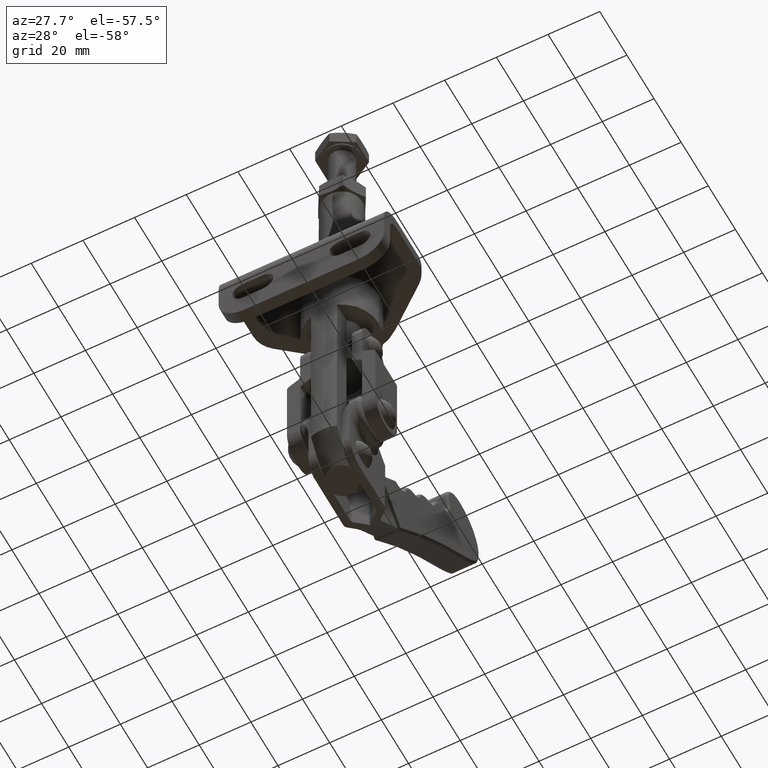
[diagram: clean part render]
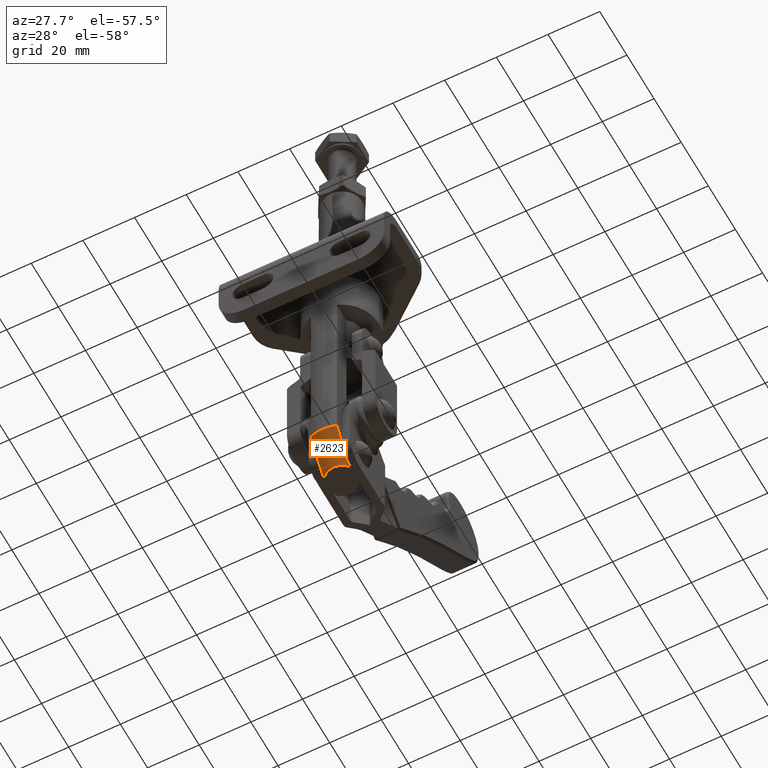
[diagram: same view with one face highlighted and labeled with its STEP entity id]
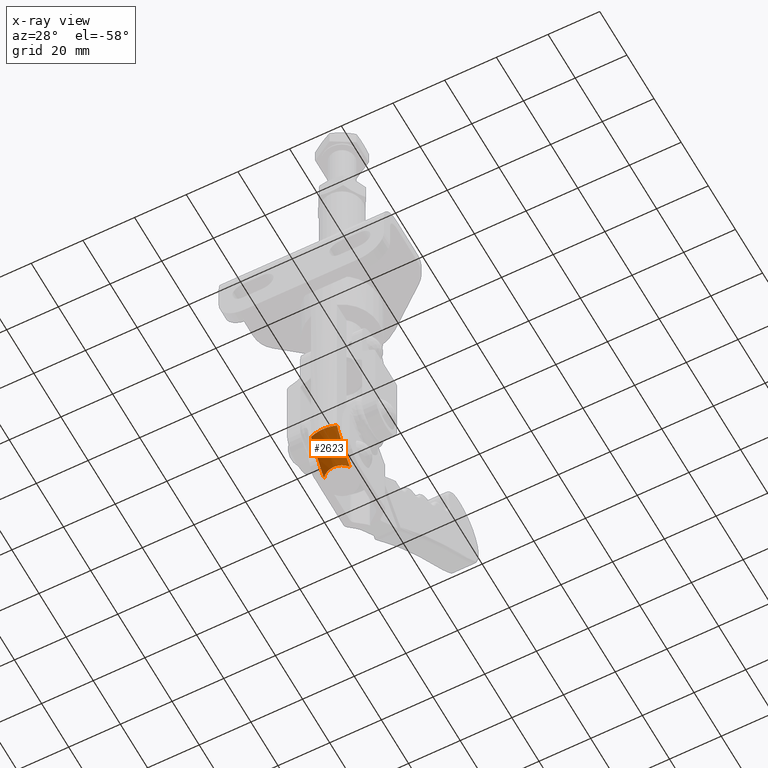
[diagram: x-ray of the same camera — body ghosted, the highlighted face saturated]
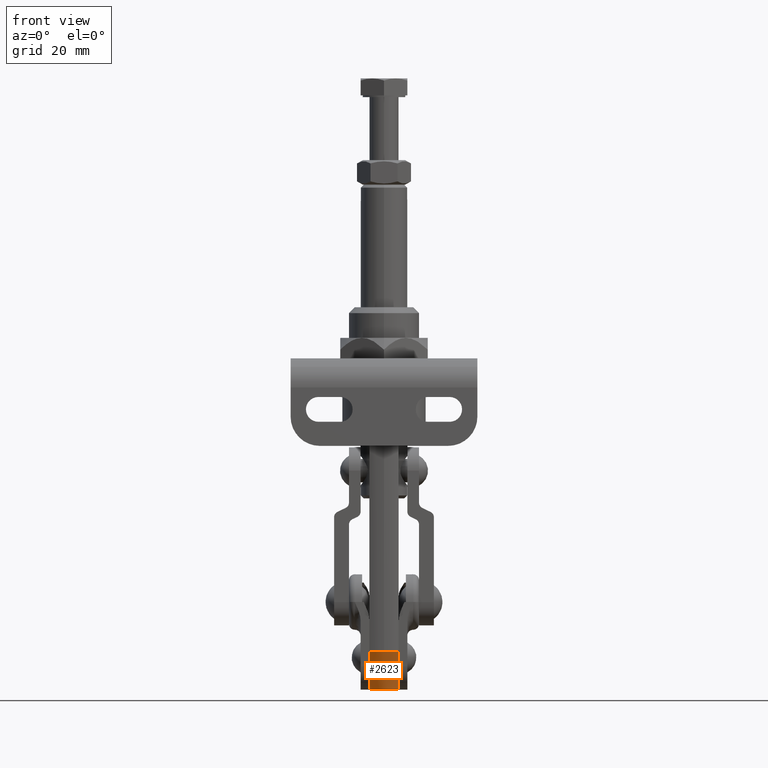
[diagram: same view with one face highlighted and labeled with its STEP entity id]
A machine part, auxiliary view. The second image highlights one B-rep face of the part: STEP entity #2623.
The next image is the same camera in x-ray: the body ghosted, the highlighted face saturated — about 0% of this face is hidden behind the body in this view.
A second angle (front view) of the same face is appended — the face is thin or edge-on in the first view.
In plain terms, the highlighted conical surface has half-angle 31.608 deg.
Its self-contained STEP definition (entity closure, byte-faithful):
#1441=CARTESIAN_POINT('',(5.075733E-015,-14.249999999999895,-95.999999990820669));
#1442=VERTEX_POINT('',#1441);
#1451=CARTESIAN_POINT('',(5.000000000000066,-13.344006145082417,-96.000000000000057));
#1452=VERTEX_POINT('',#1451);
#1453=CARTESIAN_POINT('',(-4.440892E-015,5.551115E-015,-95.999999990820669));
#1454=DIRECTION('',(0.0,0.0,1.0));
#1455=DIRECTION('',(0.0,1.0,0.0));
#1456=AXIS2_PLACEMENT_3D('',#1453,#1454,#1455);
#1457=CIRCLE('',#1456,14.249999999999901);
#1458=EDGE_CURVE('',#1442,#1452,#1457,.T.);
#2259=CARTESIAN_POINT('',(-5.000000000000066,-3.749999999999986,-109.000000000000130));
#2260=VERTEX_POINT('',#2259);
#2267=CARTESIAN_POINT('',(-5.000000000000066,-13.344006145082417,-95.999999999999929));
#2268=VERTEX_POINT('',#2267);
#2269=CARTESIAN_POINT('',(-5.000000000000064,21.444032338547778,-83.374999999999901));
#2270=CARTESIAN_POINT('',(-5.000000000000064,9.072907E-014,-117.311271853585250));
#2271=CARTESIAN_POINT('',(-5.000000000000064,-21.444032338547920,-83.375000000000114));
#2279=(BOUNDED_CURVE()B_SPLINE_CURVE(2,(#2269,#2270,#2271),.UNSPECIFIED.,.F.,.U.)B_SPLINE_CURVE_WITH_KNOTS((3,3),(0.0,6.999184774430768),.UNSPECIFIED.)CURVE()GEOMETRIC_REPRESENTATION_ITEM()RATIONAL_B_SPLINE_CURVE((1.0,4.403846150521949,1.0))REPRESENTATION_ITEM(''));
#2280=CARTESIAN_POINT('',(-5.000000000000063,-3.750000004588142,-109.000000004705900));
#2281=CARTESIAN_POINT('',(-5.000000000000064,-13.344006140869565,-95.999999997231399));
#2282=TRIMMED_CURVE('',#2279,(PARAMETER_VALUE(4.969407591899432),#2280),(PARAMETER_VALUE(6.556198584940474),#2281),.T.,.PARAMETER.);
#2283=EDGE_CURVE('',#2260,#2268,#2282,.T.);
#2525=CARTESIAN_POINT('',(-4.440892E-015,5.551115E-015,-95.999999990820669));
#2526=DIRECTION('',(0.0,0.0,1.0));
#2527=DIRECTION('',(0.0,1.0,0.0));
#2528=AXIS2_PLACEMENT_3D('',#2525,#2526,#2527);
#2529=CIRCLE('',#2528,14.249999999999901);
#2530=EDGE_CURVE('',#2268,#1442,#2529,.T.);
#2577=CARTESIAN_POINT('',(5.000000000000066,-3.749999999999986,-109.000000000000130));
#2578=VERTEX_POINT('',#2577);
#2585=CARTESIAN_POINT('',(3.808653E-015,-3.867004E-014,-109.000000000000130));
#2586=DIRECTION('',(0.0,0.0,-1.0));
#2587=DIRECTION('',(-1.0,0.0,0.0));
#2588=AXIS2_PLACEMENT_3D('',#2585,#2586,#2587);
#2589=CIRCLE('',#2588,6.250000005648813);
#2590=EDGE_CURVE('',#2578,#2260,#2589,.T.);
#2596=CARTESIAN_POINT('',(3.885781E-015,-3.330669E-014,-107.142857142857220));
#2597=DIRECTION('',(4.152999E-017,2.887956E-015,1.0));
#2598=DIRECTION('',(-1.0,0.0,0.0));
#2599=AXIS2_PLACEMENT_3D('',#2596,#2597,#2598);
#2600=CONICAL_SURFACE('',#2599,7.392857146892011,31.607502210132520);
#2601=CARTESIAN_POINT('',(5.000000000000062,21.444032338547938,-83.374999999999631));
#2602=CARTESIAN_POINT('',(5.000000000000063,9.072907E-014,-117.311271853585250));
#2603=CARTESIAN_POINT('',(5.000000000000064,-21.444032338548080,-83.374999999999844));
#2611=(BOUNDED_CURVE()B_SPLINE_CURVE(2,(#2601,#2602,#2603),.UNSPECIFIED.,.F.,.U.)B_SPLINE_CURVE_WITH_KNOTS((3,3),(0.0,6.999184774430827),.UNSPECIFIED.)CURVE()GEOMETRIC_REPRESENTATION_ITEM()RATIONAL_B_SPLINE_CURVE((1.0,4.403846150521991,1.0))REPRESENTATION_ITEM(''));
#2612=CARTESIAN_POINT('',(5.000000000000064,-3.750000004588116,-109.000000004705920));
#2613=CARTESIAN_POINT('',(5.000000000000064,-13.344006140869508,-95.999999997231484));
#2614=TRIMMED_CURVE('',#2611,(PARAMETER_VALUE(4.969407591899465),#2612),(PARAMETER_VALUE(6.556198584940520),#2613),.T.,.PARAMETER.);
#2615=EDGE_CURVE('',#2578,#1452,#2614,.T.);
#2616=ORIENTED_EDGE('',*,*,#2615,.T.);
#2617=ORIENTED_EDGE('',*,*,#1458,.F.);
#2618=ORIENTED_EDGE('',*,*,#2530,.F.);
#2619=ORIENTED_EDGE('',*,*,#2283,.F.);
#2620=ORIENTED_EDGE('',*,*,#2590,.F.);
#2621=EDGE_LOOP('',(#2616,#2617,#2618,#2619,#2620));
#2622=FACE_OUTER_BOUND('',#2621,.T.);
#2623=ADVANCED_FACE('',(#2622),#2600,.T.);